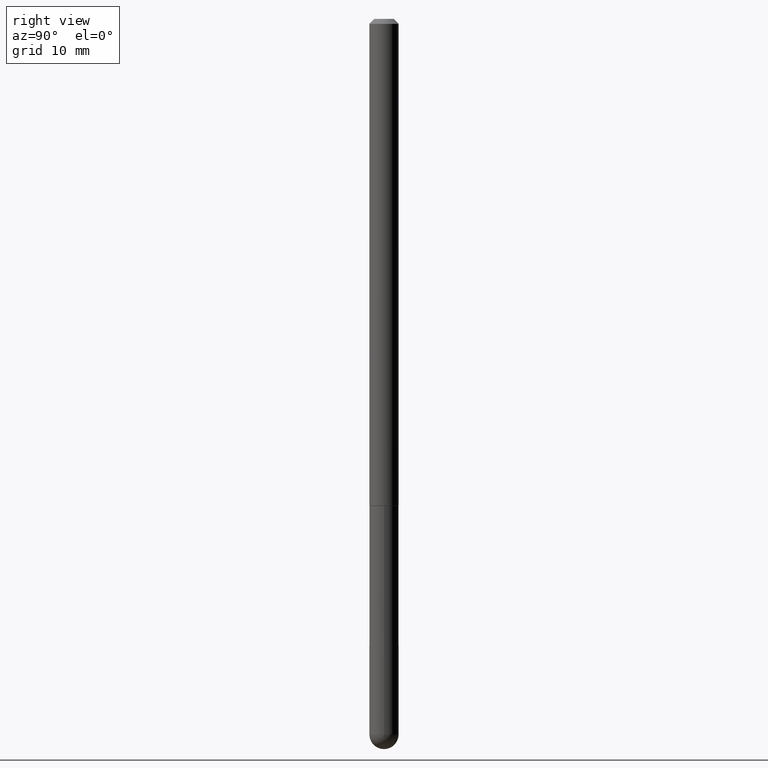
[diagram: clean part render]
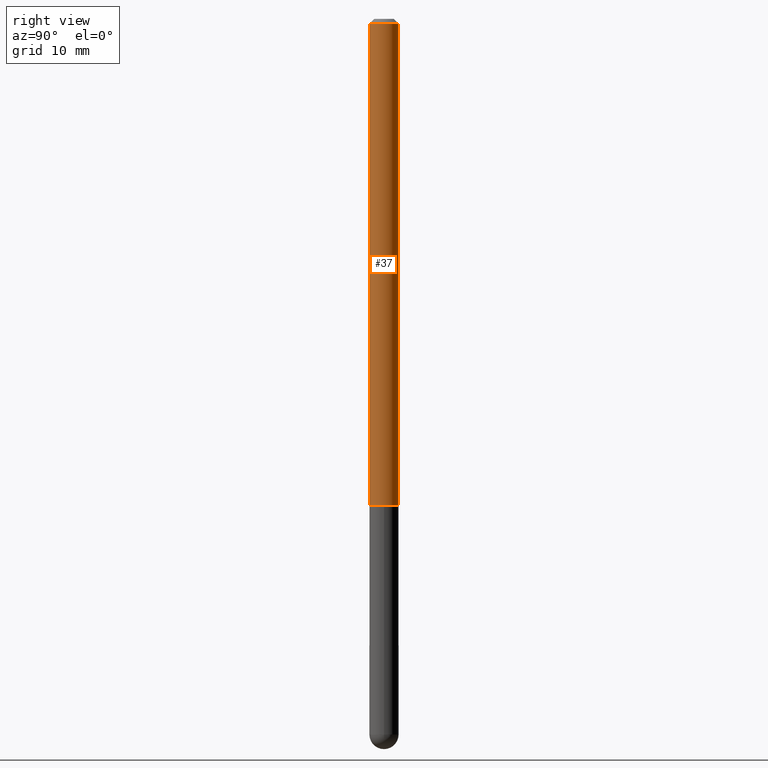
[diagram: same view with one face highlighted and labeled with its STEP entity id]
A machine part, right view. The second image highlights one B-rep face of the part: STEP entity #37.
In plain terms, the highlighted cylindrical surface (edge-blend (fillet) strip) has radius 1.4999 mm, axis along (-0, 0, 1).
Its self-contained STEP definition (entity closure, byte-faithful):
#6 = VERTEX_POINT ( 'NONE', #395 ) ;
#25 = CARTESIAN_POINT ( 'NONE',  ( -4.051124067684085231E-16, -0.05905000000000008159, -0.01999999999999986511 ) ) ;
#29 = DIRECTION ( 'NONE',  ( -2.452606242276133797E-29, 3.481260124123203654E-15, 1.000000000000000000 ) ) ;
#37 = ADVANCED_FACE ( 'NONE', ( #92 ), #215, .T. ) ;
#61 = CARTESIAN_POINT ( 'NONE',  ( 0.000000000000000000, 0.000000000000000000, 0.000000000000000000 ) ) ;
#62 = CARTESIAN_POINT ( 'NONE',  ( -4.123439461173747722E-16, -0.05905000000000010935, 2.055684103294755676E-16 ) ) ;
#67 = EDGE_LOOP ( 'NONE', ( #208, #181, #270, #79 ) ) ;
#79 = ORIENTED_EDGE ( 'NONE', *, *, #376, .F. ) ;
#81 = CARTESIAN_POINT ( 'NONE',  ( 4.195754854663398874E-16, 0.05905000000000010935, -2.055684103294755676E-16 ) ) ;
#92 = FACE_OUTER_BOUND ( 'NONE', #67, .T. ) ;
#110 = CARTESIAN_POINT ( 'NONE',  ( 4.905212484552284025E-31, -6.962520248246431022E-17, -0.02000000000000006981 ) ) ;
#122 = CARTESIAN_POINT ( 'NONE',  ( -4.123439461173271448E-16, -0.05905000000000704824, -1.967499999999999361 ) ) ;
#133 = CIRCLE ( 'NONE', #380, 0.05905000000000001914 ) ;
#142 = AXIS2_PLACEMENT_3D ( 'NONE', #328, #226, #389 ) ;
#177 = DIRECTION ( 'NONE',  ( -2.452606242276134078E-29, 3.481260124123204048E-15, 1.000000000000000000 ) ) ;
#181 = ORIENTED_EDGE ( 'NONE', *, *, #387, .T. ) ;
#185 = DIRECTION ( 'NONE',  ( -2.452606242276133797E-29, 3.481260124123203654E-15, 1.000000000000000000 ) ) ;
#208 = ORIENTED_EDGE ( 'NONE', *, *, #262, .T. ) ;
#215 = CYLINDRICAL_SURFACE ( 'NONE', #394, 0.05905000000000010935 ) ;
#225 = VECTOR ( 'NONE', #369, 39.37007874015748143 ) ;
#226 = DIRECTION ( 'NONE',  ( -2.452606242276133797E-29, 3.481260124123203654E-15, 1.000000000000000000 ) ) ;
#229 = EDGE_CURVE ( 'NONE', #235, #6, #133, .T. ) ;
#235 = VERTEX_POINT ( 'NONE', #25 ) ;
#244 = CARTESIAN_POINT ( 'NONE',  ( 4.195754854663646379E-16, 0.05904999999999335780, -1.967500000000000027 ) ) ;
#247 = CIRCLE ( 'NONE', #142, 0.05905000000000020649 ) ;
#252 = DIRECTION ( 'NONE',  ( -6.982962677686265922E-15, -1.000000000000000000, 3.481260124123203654E-15 ) ) ;
#260 = LINE ( 'NONE', #62, #225 ) ;
#262 = EDGE_CURVE ( 'NONE', #406, #341, #247, .T. ) ;
#270 = ORIENTED_EDGE ( 'NONE', *, *, #229, .F. ) ;
#306 = LINE ( 'NONE', #81, #393 ) ;
#320 = DIRECTION ( 'NONE',  ( -6.982962677686265922E-15, -1.000000000000000000, 3.469747663417776213E-15 ) ) ;
#328 = CARTESIAN_POINT ( 'NONE',  ( 4.825502781678292621E-29, -6.849379294212400691E-15, -1.967499999999999805 ) ) ;
#341 = VERTEX_POINT ( 'NONE', #244 ) ;
#369 = DIRECTION ( 'NONE',  ( -2.452606242276134078E-29, 3.481260124123204048E-15, 1.000000000000000000 ) ) ;
#376 = EDGE_CURVE ( 'NONE', #406, #235, #260, .T. ) ;
#380 = AXIS2_PLACEMENT_3D ( 'NONE', #110, #185, #320 ) ;
#387 = EDGE_CURVE ( 'NONE', #341, #6, #306, .T. ) ;
#389 = DIRECTION ( 'NONE',  ( -6.982962677686265922E-15, -1.000000000000000000, 4.626330217890353559E-15 ) ) ;
#393 = VECTOR ( 'NONE', #177, 39.37007874015748143 ) ;
#394 = AXIS2_PLACEMENT_3D ( 'NONE', #61, #29, #252 ) ;
#395 = CARTESIAN_POINT ( 'NONE',  ( 4.123439461173745750E-16, 0.05904999999999994975, -0.02000000000000027450 ) ) ;
#406 = VERTEX_POINT ( 'NONE', #122 ) ;